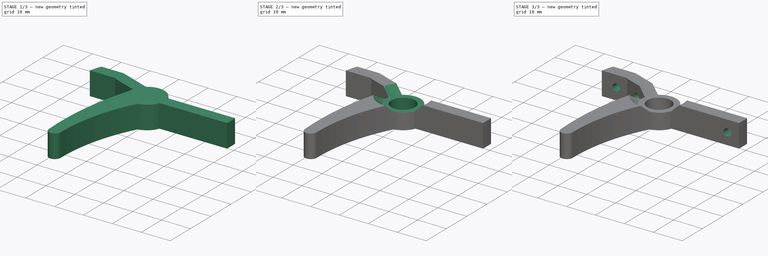
[diagram: build sequence overview — one tinted view per stage of 3, left to right]
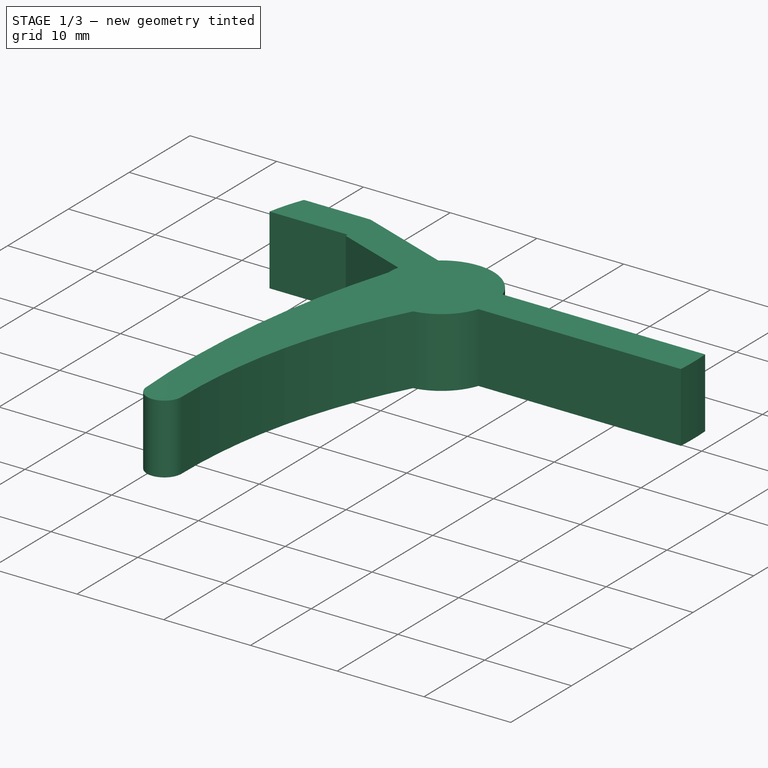
[diagram: stage 1 of 3 — iso view after this stage's code; geometry added in this stage tinted green]
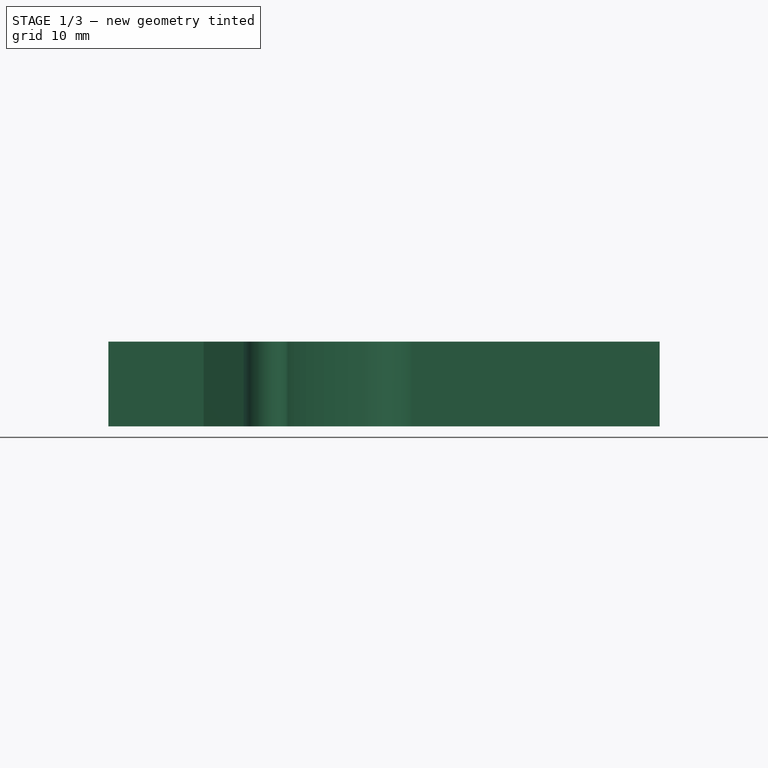
[diagram: stage 1 of 3 — front view after this stage's code; geometry added in this stage tinted green]
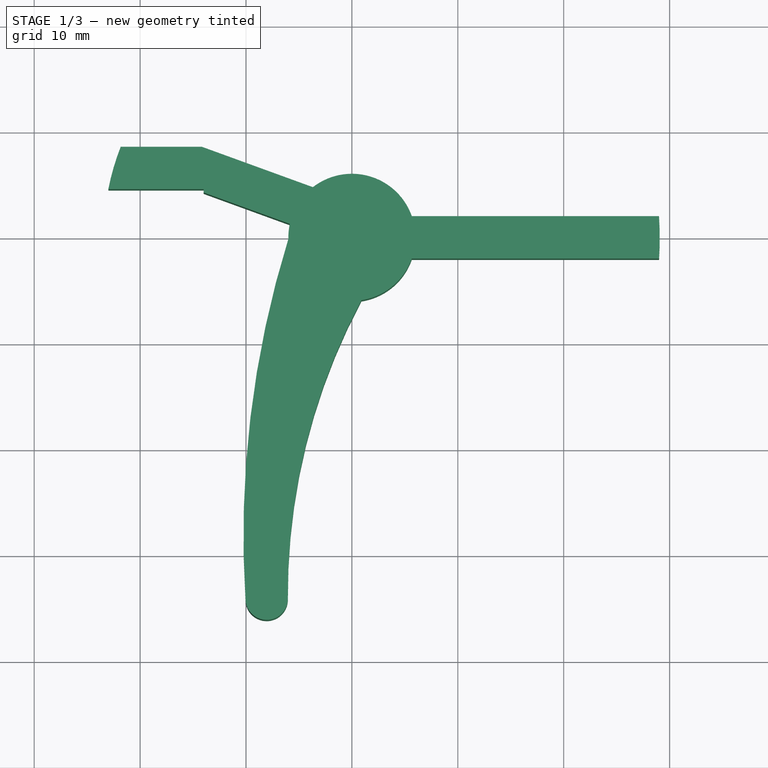
[diagram: stage 1 of 3 — top view after this stage's code; geometry added in this stage tinted green]
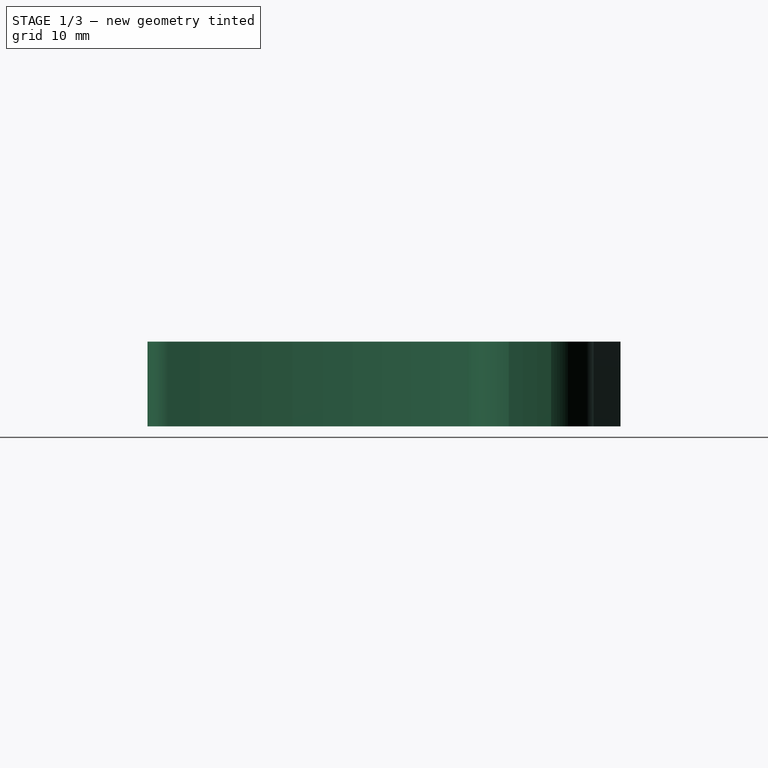
[diagram: stage 1 of 3 — right view after this stage's code; geometry added in this stage tinted green]
FCSTD DOCUMENT  (FreeCAD 1.0R39109 (Git))
Label: Trigger.stl
License: All rights reserved
LicenseURL: http://en.wikipedia.org/wiki/All_rights_reserved
objects: Sketcher::SketchObject×5, PartDesign::Pad×2, PartDesign::Pocket×2, PartDesign::Groove×1, PartDesign::Body×1, App::Part×1
note: 26 computed .brp shape members not serialized (recipe doc carries the construction recipe); baked Part::Feature solids carry a one-line shape summary decoded from their .brp

FEATURE [Sketcher::SketchObject] Sketch
  ArcFitTolerance = 1e-06
  AttachmentSupport = -> [XY_Plane002]
  FullyConstrained = true
  MakeInternals = false
  MapMode = 5
  sketch-geometry (17):
    g0: Circle [constr] CenterX=0 CenterY=0 CenterZ=0 NormalX=0 NormalY=0 NormalZ=1 AngleXU=0 Radius=6
    g1: LineSegment [constr] StartX=-5.63816 StartY=2.05212 StartZ=0 EndX=-18 EndY=6.55146 EndZ=0
    g2: LineSegment StartX=5.65685 StartY=2 StartZ=0 EndX=29 EndY=2 EndZ=0
    g3: LineSegment StartX=29 StartY=-2 StartZ=0 EndX=5.65685 EndY=-2 EndZ=0
    g4: LineSegment [constr] StartX=6 StartY=4.5e-15 StartZ=0 EndX=25 EndY=0 EndZ=0
    g5: ArcOfCircle CenterX=0 CenterY=0 CenterZ=0 NormalX=0 NormalY=0 NormalZ=1 AngleXU=0 Radius=6 StartAngle=0.339837 EndAngle=2.23203
    g6: ArcOfCircle CenterX=0 CenterY=0 CenterZ=0 NormalX=0 NormalY=0 NormalZ=1 AngleXU=0 Radius=6 StartAngle=2.928 EndAngle=5.94335
    g7: LineSegment [constr] StartX=-8.90908 StartY=6.63697 StartZ=0 EndX=-10.2772 EndY=2.8782 EndZ=0
    g8: LineSegment [constr] StartX=-18 StartY=8.55146 StartZ=0 EndX=-18 EndY=4.55146 EndZ=0
    g9: GeomPoint [constr] X=-10 Y=3.6397 Z=0
    g10: LineSegment StartX=-23 StartY=4.55146 StartZ=0 EndX=-14 EndY=4.55146 EndZ=0
    g11: LineSegment StartX=-14 StartY=4.55146 StartZ=0 EndX=-14 EndY=4.23321 EndZ=0
    g12: LineSegment StartX=-14 StartY=4.23321 StartZ=0 EndX=-5.86366 EndY=1.27182 EndZ=0
    g13: LineSegment StartX=-21.8309 StartY=8.55146 StartZ=0 EndX=-14.1691 EndY=8.55146 EndZ=0
    g14: LineSegment StartX=-14.1691 StartY=8.55146 StartZ=0 EndX=-3.68456 EndY=4.7354 EndZ=0
    g15: ArcOfCircle CenterX=0 CenterY=0 CenterZ=0 NormalX=0 NormalY=0 NormalZ=1 AngleXU=0 Radius=23.446 StartAngle=2.76825 EndAngle=2.94623
    g16: ArcOfCircle CenterX=0 CenterY=0 CenterZ=0 NormalX=0 NormalY=0 NormalZ=1 AngleXU=0 Radius=29.0689 StartAngle=6.21433 EndAngle=6.35204
  constraints (51):
    c: Coincident(g0,g-1)
    c: Diameter(g0) = 12
    c: PointOnObject(g5,g0)
    c: PointOnObject(g6,g0)
    c: PointOnObject(g1,g0)
    c: PointOnObject(g0,g1)
    c: Angle(g1,g-1) = 0.349066
    c: Horizontal(g2)
    c: Horizontal(g3)
    c: PointOnObject(g4,g0)
    c: PointOnObject(g4,g-1)
    c: Symmetric(g3,g2,g4)
    c: Coincident(g5,g0)
    c: Coincident(g5,g2)
    c: Coincident(g6,g3)
    c: Coincident(g6,g0)
    c: DistanceX(g-1,g4) = 25
    c: Symmetric(g8,g8,g1)
    c: Vertical(g8)
    c: Equal(g7,g8)
    c: DistanceY(g8,g8) = 4
    c: PointOnObject(g9,g1)
    c: DistanceX(g1,g-1) = 18
    c: DistanceX(g9,g-1) = 10
    c: Horizontal(g10)
    c: Coincident(g11,g10)
    c: Coincident(g12,g11)
    c: Coincident(g12,g6)
    c: PointOnObject(g7,g12)
    c: Vertical(g11)
    c: PointOnObject(g8,g10)
    c: DistanceX(g10,g8) = 5
    c: Horizontal(g13)
    c: Symmetric(g13,g13,g8)
    c: Coincident(g14,g13)
    c: Parallel(g14,g1)
    c: Perpendicular(g7,g12)
    c: Coincident(g14,g5)
    c: Perpendicular(g1,g7)
    c: PointOnObject(g9,g7)
    c: DistanceX(g8,g10) = 4
    c: PointOnObject(g7,g14)
    c: Coincident(g15,g0)
    c: Coincident(g15,g13)
    c: Coincident(g15,g10)
    c: Distance(g13,g-1) = 23.446
    c: Distance(g2,g3) = 4
    c: Coincident(g16,g0)
    c: Coincident(g16,g2)
    c: Coincident(g16,g3)
    c: DistanceX(g4,g2) = 4
FEATURE [PartDesign::Pad] Pad
  Direction = (0,0,1)
  Length = 8
  Length2 = 10
  Midplane = true
  Profile = -> Sketch
  ReferenceAxis = -> Sketch [N_Axis]
  Refine = true
  Suppressed = false
  Type = 0
FEATURE [Sketcher::SketchObject] Sketch001
  ArcFitTolerance = 1e-06
  AttachmentOffset = pos=(0,0,0) rot=(0,0,1;-0.174533rad)
  AttachmentSupport = -> [XY_Plane002]
  FullyConstrained = true
  MakeInternals = false
  MapMode = 5
  Placement = pos=(0,0,0) rot=(0,0,1;6.10865rad)
  sketch-geometry (9):
    g0: ArcOfCircle CenterX=58 CenterY=-24 CenterZ=0 NormalX=0 NormalY=0 NormalZ=1 AngleXU=0 Radius=59 StartAngle=2.82598 EndAngle=3.32291
    g1: ArcOfCircle CenterX=-2 CenterY=-35 CenterZ=0 NormalX=0 NormalY=0 NormalZ=1 AngleXU=0 Radius=2 StartAngle=3.38066 EndAngle=6.46451
    g2: ArcOfCircle CenterX=87.924 CenterY=-13.0833 CenterZ=0 NormalX=0 NormalY=0 NormalZ=1 AngleXU=0 Radius=94.5563 StartAngle=3.01546 EndAngle=3.38066
    g3: GeomPoint X=0 Y=-35 Z=0
    g4: Circle [constr] CenterX=0 CenterY=0 CenterZ=0 NormalX=0 NormalY=0 NormalZ=1 AngleXU=0 Radius=6
    g5: ArcOfCircle CenterX=0 CenterY=0 CenterZ=0 NormalX=0 NormalY=0 NormalZ=1 AngleXU=0 Radius=6 StartAngle=3.34098 EndAngle=5.0371
    g6: GeomPoint X=-1 Y=-24 Z=0
    g7: GeomPoint X=0 Y=-24 Z=0
    g8: GeomPoint X=-6 Y=-24 Z=0
  constraints (23):
    c: Tangent(g2,g1) = -1.5708
    c: Tangent(g1,g0) = 1.5708
    c: PointOnObject(g3,g1)
    c: Horizontal(g3,g1)
    c: DistanceY(g3,g-1) = 35
    c: Radius(g1) = 2
    c: Coincident(g4,g-1)
    c: Diameter(g4) = 12
    c: Coincident(g5,g4)
    c: Coincident(g5,g0)
    c: Coincident(g5,g2)
    c: PointOnObject(g3,g-2)
    c: PointOnObject(g0,g4)
    c: PointOnObject(g6,g0)
    c: PointOnObject(g7,g-2)
    c: Horizontal(g7,g6)
    c: DistanceX(g6,g7) = 1
    c: Horizontal(g0,g7)
    c: PointOnObject(g8,g2)
    c: Horizontal(g8,g6)
    c: DistanceX(g8,g6) = 5
    c: Distance(g2,g0) = 9
    c: DistanceY(g7,g-1) = 24
FEATURE [PartDesign::Pad] Pad001
  BaseFeature = -> Pad
  Direction = (0,0,1)
  Length = 8
  Length2 = 10
  Midplane = true
  Profile = -> Sketch001
  ReferenceAxis = -> Sketch001 [N_Axis]
  Refine = true
  Suppressed = false
  Type = 0
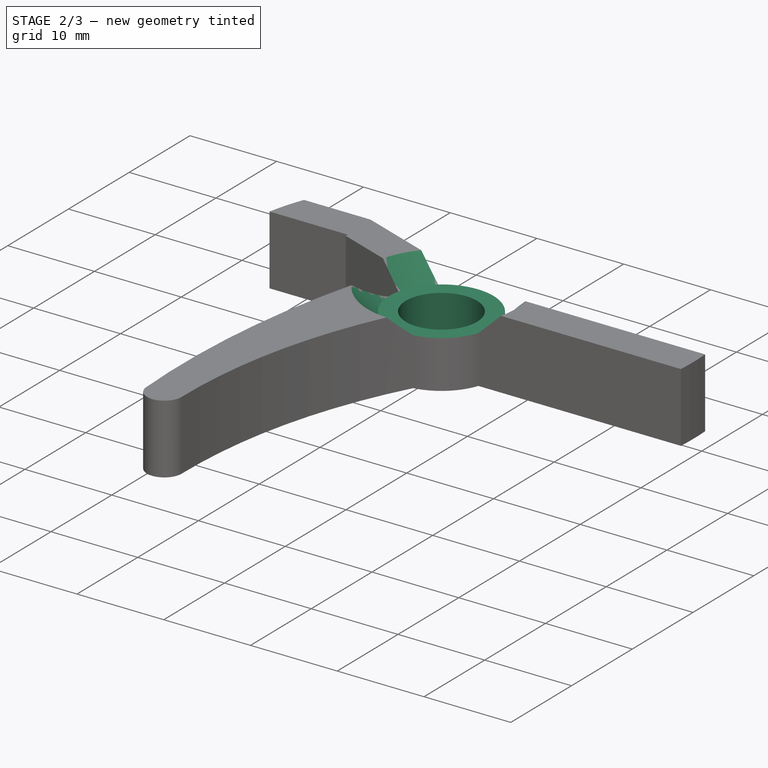
[diagram: stage 2 of 3 — iso view after this stage's code; geometry added in this stage tinted green]
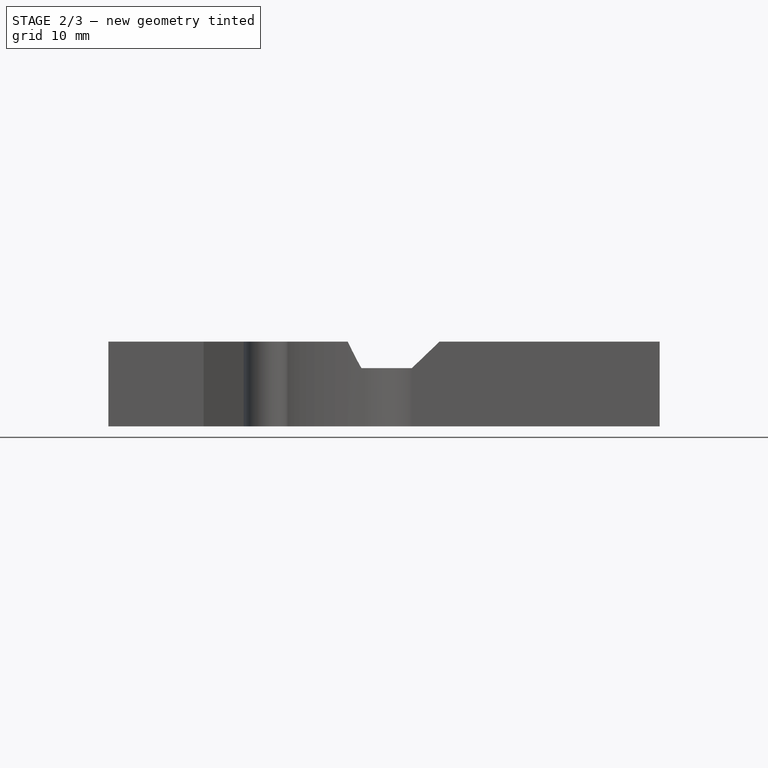
[diagram: stage 2 of 3 — front view after this stage's code; geometry added in this stage tinted green]
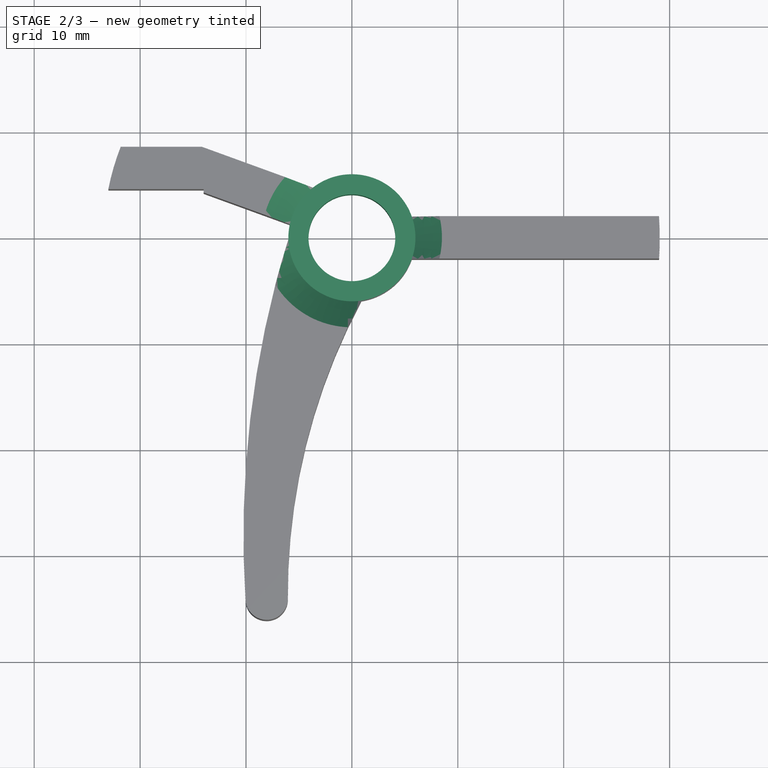
[diagram: stage 2 of 3 — top view after this stage's code; geometry added in this stage tinted green]
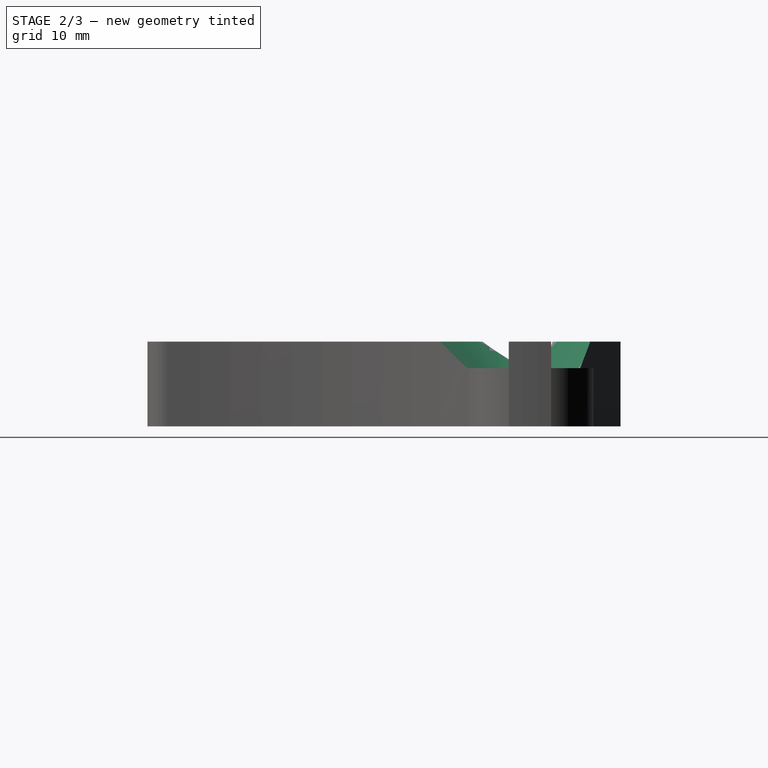
[diagram: stage 2 of 3 — right view after this stage's code; geometry added in this stage tinted green]
FEATURE [Sketcher::SketchObject] Sketch002
  ArcFitTolerance = 1e-06
  AttachmentSupport = -> [XZ_Plane002]
  FullyConstrained = true
  MakeInternals = false
  MapMode = 5
  Placement = pos=(0,0,0) rot=(1,0,0;1.5708rad)
  sketch-geometry (6):
    g0: LineSegment StartX=0 StartY=-20 StartZ=0 EndX=-4.1 EndY=-20 EndZ=0
    g1: LineSegment StartX=-4.1 StartY=-20 StartZ=0 EndX=-4.1 EndY=1.5 EndZ=0
    g2: LineSegment StartX=-4.1 StartY=1.5 StartZ=0 EndX=-6 EndY=1.5 EndZ=0
    g3: LineSegment StartX=-6 StartY=1.5 StartZ=0 EndX=-24.5 EndY=20 EndZ=0
    g4: LineSegment StartX=-24.5 StartY=20 StartZ=0 EndX=0 EndY=20 EndZ=0
    g5: LineSegment StartX=0 StartY=20 StartZ=0 EndX=0 EndY=-20 EndZ=0
  constraints (18):
    c: PointOnObject(g0,g-2)
    c: Horizontal(g0)
    c: Coincident(g0,g1)
    c: Vertical(g1)
    c: Coincident(g1,g2)
    c: Horizontal(g2)
    c: Coincident(g2,g3)
    c: Coincident(g3,g4)
    c: Horizontal(g4)
    c: Coincident(g4,g5)
    c: Coincident(g5,g0)
    c: Vertical(g5)
    c: DistanceY(g0,g-1) = 20
    c: DistanceX(g0,g-1) = 4.1
    c: DistanceX(g2,g-1) = 6
    c: DistanceY(g-1,g1) = 1.5
    c: Angle(g2,g3) = 2.35619
    c: DistanceY(g-1,g4) = 20
FEATURE [PartDesign::Groove] Groove
  Angle = 360
  Angle2 = 60
  Axis = (0,2e-16,1)
  Base = (0,0,0)
  BaseFeature = -> Pad001
  Profile = -> Sketch002
  ReferenceAxis = -> Sketch002 [V_Axis]
  Refine = true
  Reversed = true
  Suppressed = false
  Type = 0
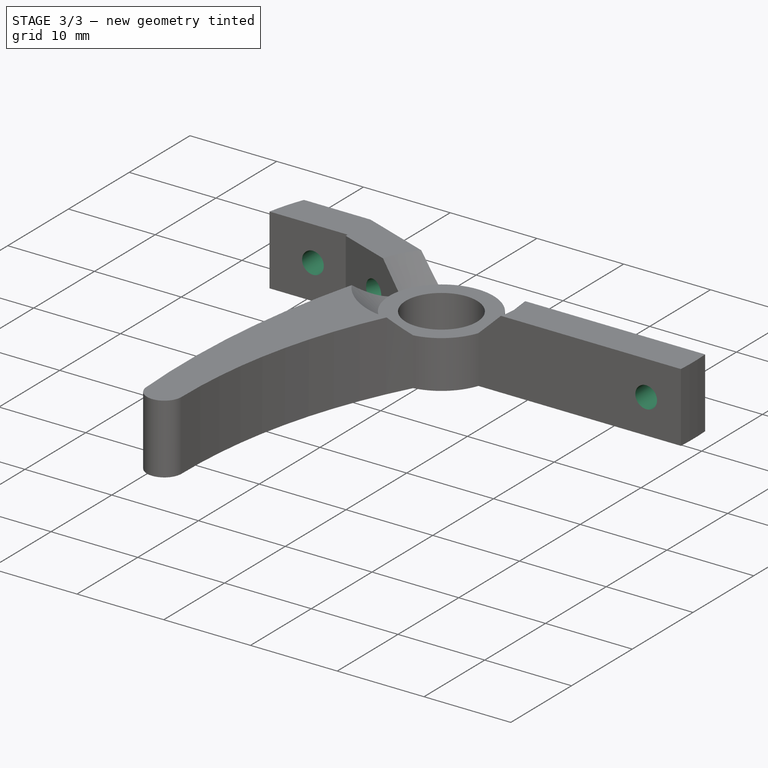
[diagram: stage 3 of 3 — iso view after this stage's code; geometry added in this stage tinted green]
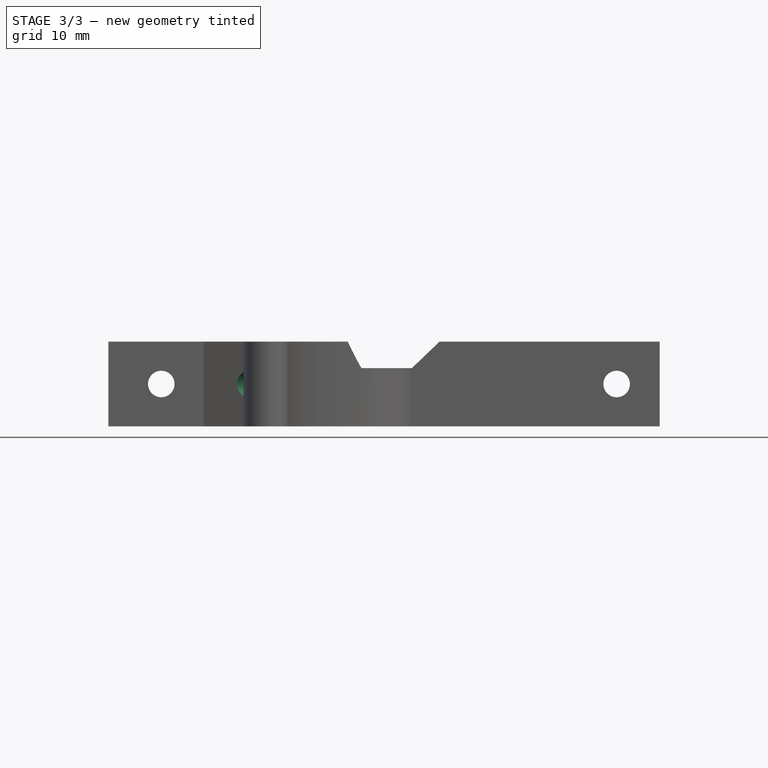
[diagram: stage 3 of 3 — front view after this stage's code; geometry added in this stage tinted green]
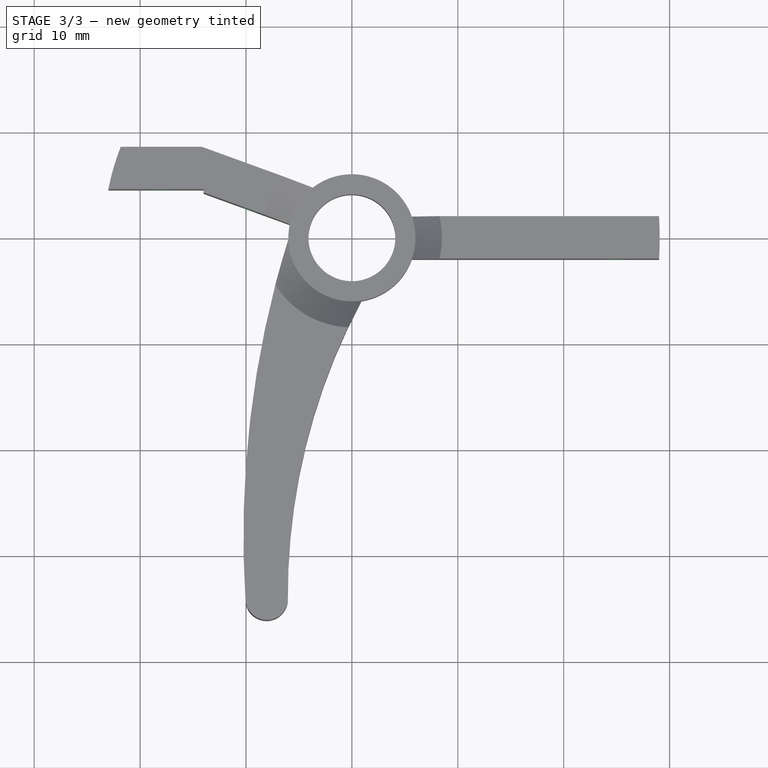
[diagram: stage 3 of 3 — top view after this stage's code; geometry added in this stage tinted green]
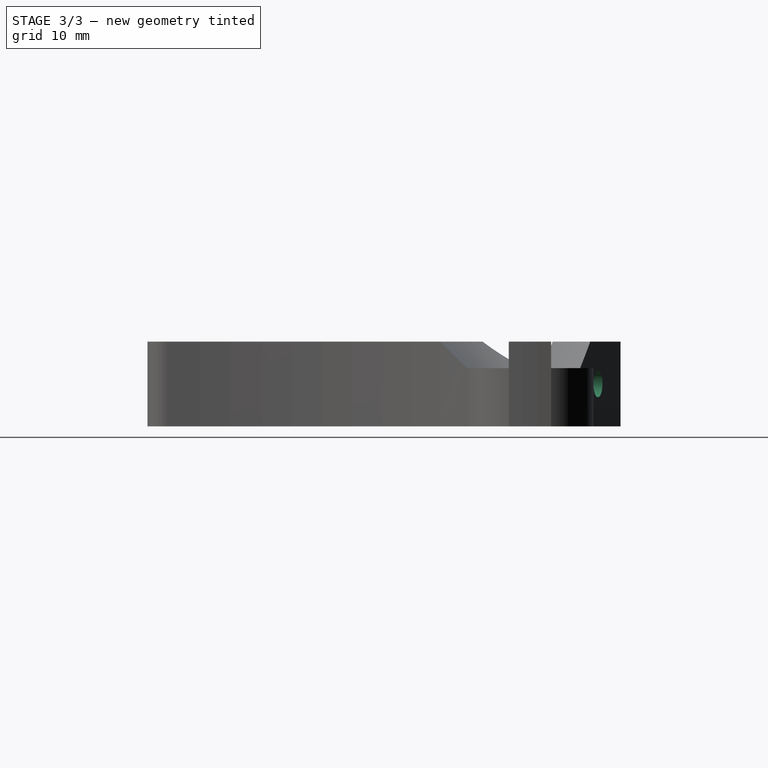
[diagram: stage 3 of 3 — right view after this stage's code; geometry added in this stage tinted green]
FEATURE [Sketcher::SketchObject] Sketch003
  ArcFitTolerance = 1e-06
  AttachmentSupport = -> [XZ_Plane002]
  FullyConstrained = true
  MakeInternals = false
  MapMode = 5
  Placement = pos=(0,0,0) rot=(1,0,0;1.5708rad)
  sketch-geometry (2):
    g0: Circle CenterX=25 CenterY=0 CenterZ=0 NormalX=0 NormalY=0 NormalZ=1 AngleXU=0 Radius=1.25
    g1: Circle CenterX=-18 CenterY=0 CenterZ=0 NormalX=0 NormalY=0 NormalZ=1 AngleXU=0 Radius=1.25
  constraints (6):
    c: PointOnObject(g0,g-1)
    c: PointOnObject(g1,g-1)
    c: DistanceX(g1,g-1) = 18
    c: DistanceX(g-1,g0) = 25
    c: Equal(g0,g1)
    c: Diameter(g1) = 2.5
FEATURE [PartDesign::Pocket] Pocket  label="BoltHoles1"
  BaseFeature = -> Groove
  Direction = (0,1,-2e-16)
  Length = 5
  Length2 = 5
  Midplane = true
  Profile = -> Sketch003
  ReferenceAxis = -> Sketch003 [N_Axis]
  Refine = true
  Suppressed = false
  Type = 1
FEATURE [Sketcher::SketchObject] Sketch004
  ArcFitTolerance = 1e-06
  AttachmentOffset = pos=(0,0,0) rot=(0,-1,0;0.349066rad)
  AttachmentSupport = -> [XZ_Plane002]
  FullyConstrained = true
  MakeInternals = false
  MapMode = 5
  Placement = pos=(0,0,0) rot=(0.970288,-0.171088,-0.171088;1.60095rad)
  sketch-geometry (1):
    g0: Circle CenterX=-10 CenterY=0 CenterZ=0 NormalX=0 NormalY=0 NormalZ=1 AngleXU=0 Radius=1.25
  constraints (3):
    c: PointOnObject(g0,g-1)
    c: DistanceX(g0,g-1) = 10
    c: Diameter(g0) = 2.5
FEATURE [PartDesign::Pocket] Pocket001
  BaseFeature = -> Pocket
  Direction = (0.34202,0.939693,-1e-16)
  Length = 5
  Length2 = 5
  Midplane = true
  Profile = -> Sketch004
  ReferenceAxis = -> Sketch004 [N_Axis]
  Refine = true
  Suppressed = false
  Type = 1
FEATURE [PartDesign::Body] Body
  AllowCompound = false
  Group = -> [Sketch,Pad,Sketch001,Pad001,Sketch002,Groove,Sketch003,Pocket,Sketch004,Pocket001]
  Origin = -> Origin002
  Tip = -> Pocket001
FEATURE [App::Part] Part001  label="Trigger.stl"
  Group = -> [Body]
  Origin = -> Origin001
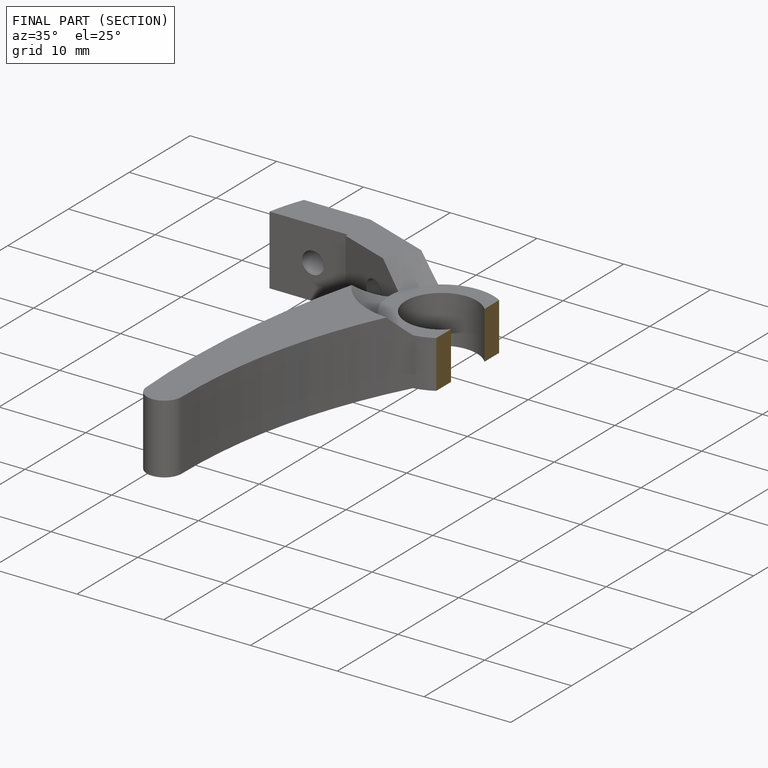
[diagram: finished part — half-section view (interior)]
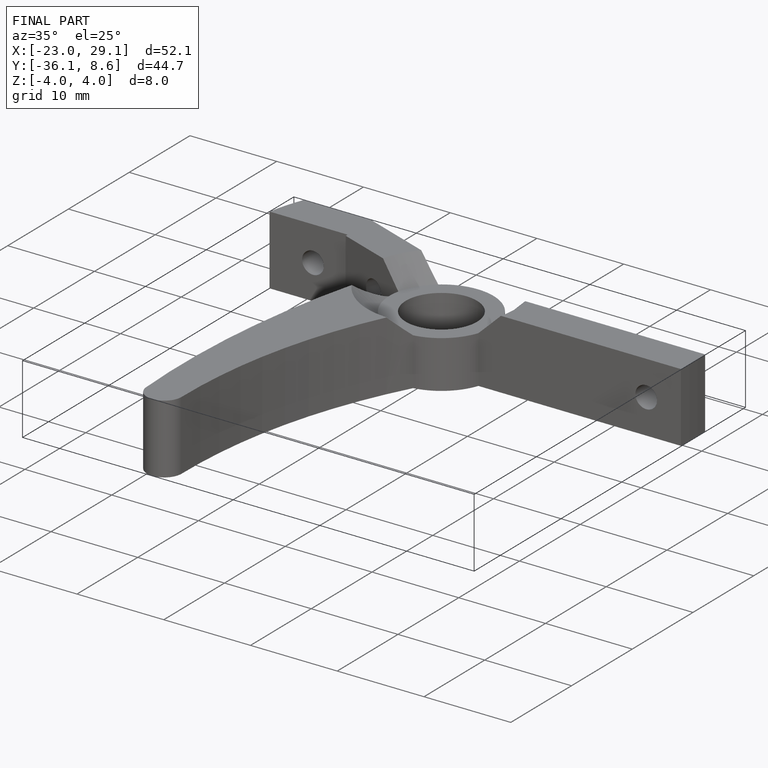
[diagram: finished part — iso view with bounding-box wireframe]
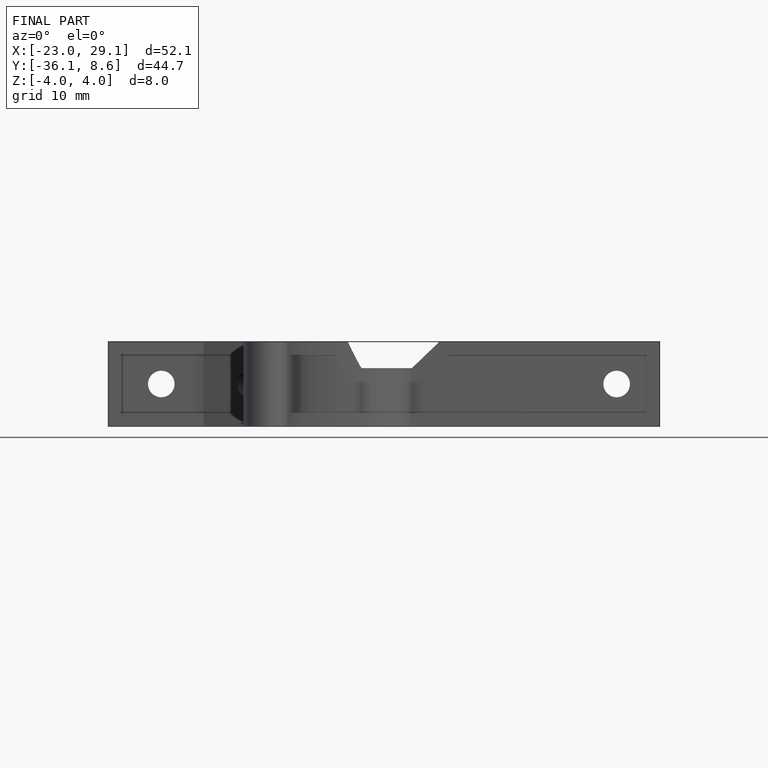
[diagram: finished part — front view with bounding-box wireframe]
